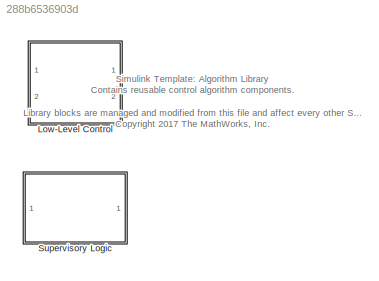
MODEL slx_288b6536903d
KIND library
CONFIG AbsTol = auto
CONFIG EnableMultiTasking = off
CONFIG FixedStep = auto
CONFIG MaxStep = auto
CONFIG MinStep = auto
CONFIG RelTol = 1e-3
CONFIG SampleTimeConstraint = Unconstrained
CONFIG Solver = VariableStepAuto
CONFIG SolverName = VariableStepAuto
CONFIG StartTime = 0.0
CONFIG StopTime = 10.0
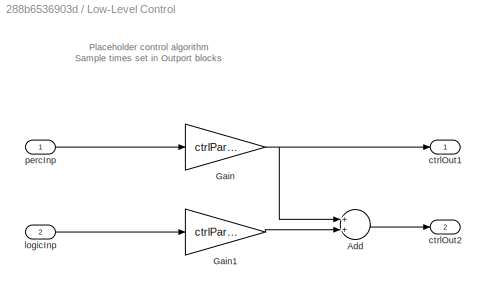
BLOCK [SubSystem] Low-Level Control
  Ports = [2, 2]
  RequestExecContextInheritance = off
  Variant = off
BLOCK [Sum] Low-Level Control/Add
  InputSameDT = off
  OutDataTypeStr = Inherit: Inherit via internal rule
  Ports = [2, 1]
  SaturateOnIntegerOverflow = off
BLOCK [Gain] Low-Level Control/Gain
  Gain = ctrlParam1
  OutDataTypeStr = Inherit: Inherit via internal rule
  ParamDataTypeStr = Inherit: Inherit via internal rule
  SaturateOnIntegerOverflow = off
BLOCK [Gain] Low-Level Control/Gain1
  Gain = ctrlParam2
  OutDataTypeStr = Inherit: Inherit via internal rule
  ParamDataTypeStr = Inherit: Inherit via internal rule
  SaturateOnIntegerOverflow = off
BLOCK [Outport] Low-Level Control/ctrlOut1
  AttributesFormatString = Sample time: %<SampleTime>
  IconDisplay = Port number
  SampleTime = Ts
BLOCK [Outport] Low-Level Control/ctrlOut2
  AttributesFormatString = Sample time: %<SampleTime>
  IconDisplay = Port number
  Port = 2
  SampleTime = Ts
BLOCK [Inport] Low-Level Control/logicInp
  IconDisplay = Port number
  Port = 2
BLOCK [Inport] Low-Level Control/percInp
  IconDisplay = Port number
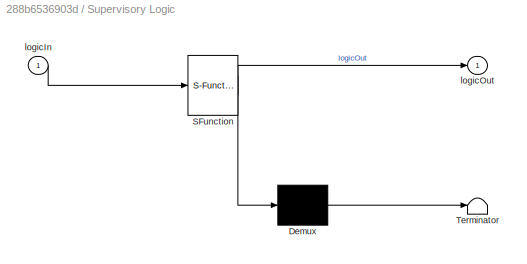
BLOCK [SubSystem] Supervisory Logic
  ErrorFcn = Stateflow.Translate.translate
  PermitHierarchicalResolution = ExplicitOnly
  Ports = [1, 1]
  RequestExecContextInheritance = off
  SFBlockType = Chart
  TreatAsAtomicUnit = on
  Variant = off
BLOCK [Demux] Supervisory Logic/ Demux 
  Outputs = 1
  Ports = [1, 1]
BLOCK [S-Function] Supervisory Logic/ SFunction 
  EnableBusSupport = off
  FunctionName = sf_sfun
  PortCounts = [1 2]
  Ports = [1, 2]
  SFcnIsStateOwnerBlock = off
  SFunctionDeploymentMode = off
  Tag = Stateflow S-Function myAlgorithmLib 3
BLOCK [Terminator] Supervisory Logic/ Terminator 
BLOCK [Inport] Supervisory Logic/logicIn
  IconDisplay = Port number
BLOCK [Outport] Supervisory Logic/logicOut
  IconDisplay = Port number
ANNOTATION (root): Simulink Template: Algorithm Library Contains reusable control algorithm components. Library blocks are managed and modified from this file and affect every other Simulink model using these blocks. <copyright redacted>
ANNOTATION Low-Level Control: Placeholder control algorithm Sample times set in Outport blocks
LINE Low-Level Control/Add:1 -> Low-Level Control/ctrlOut2:1
LINE Low-Level Control/Gain1:1 -> Low-Level Control/Add:2
NET Low-Level Control/Gain:1 -> Low-Level Control/Add:1, Low-Level Control/ctrlOut1:1
LINE Low-Level Control/logicInp:1 -> Low-Level Control/Gain1:1
LINE Low-Level Control/percInp:1 -> Low-Level Control/Gain:1
note: NET lines group one-source signal fan-out (src -> all destinations, sorted); 1:1 wires keep LINE
CHART Supervisory Logic states=2 transitions=3
  STATE_LABEL 'ModeA\n% First operating mode\nentry:\nlogicOut = 1;'
  STATE_LABEL 'ModeB\n% Second operating mode\nentry:\nlogicOut = -1;'
